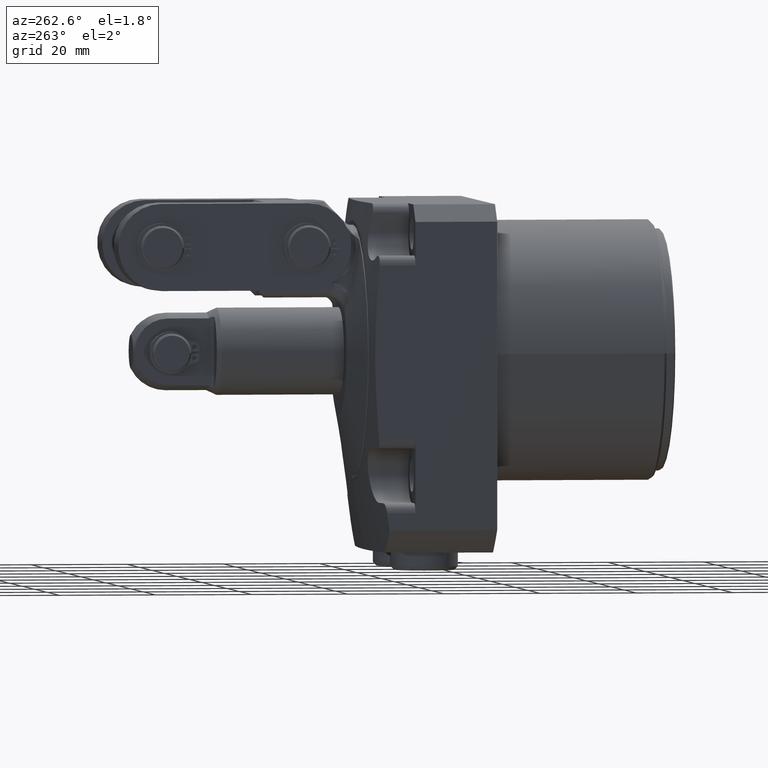
[diagram: clean part render]
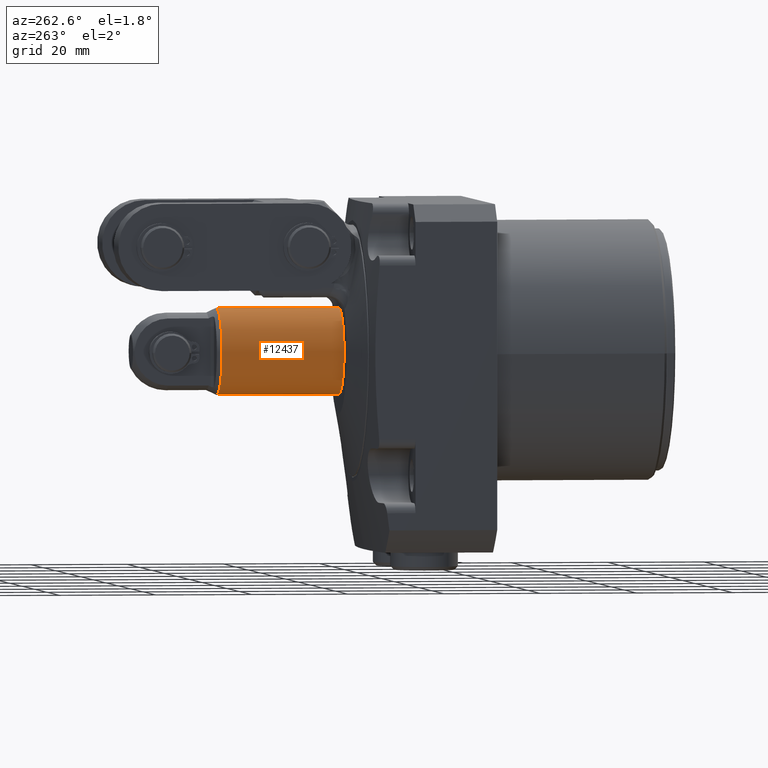
[diagram: same view with one face highlighted and labeled with its STEP entity id]
A machine part, auxiliary view. The second image highlights one B-rep face of the part: STEP entity #12437.
In plain terms, the highlighted cylindrical surface (partial cylindrical patch) has radius 9 mm, axis along (0, -1, 0).
Its self-contained STEP definition (entity closure, byte-faithful):
#7223=CARTESIAN_POINT('',(0.E0,1.25E1,0.E0));
#7224=DIRECTION('',(0.E0,-1.E0,0.E0));
#7225=DIRECTION('',(0.E0,0.E0,1.E0));
#7226=AXIS2_PLACEMENT_3D('',#7223,#7224,#7225);
#7253=DIRECTION('',(0.E0,1.E0,0.E0));
#7254=VECTOR('',#7253,2.54E1);
#7255=CARTESIAN_POINT('',(0.E0,1.25E1,-9.E0));
#7256=LINE('',#7255,#7254);
#7260=DIRECTION('',(0.E0,1.E0,0.E0));
#7261=VECTOR('',#7260,2.54E1);
#7262=CARTESIAN_POINT('',(0.E0,1.25E1,9.E0));
#7263=LINE('',#7262,#7261);
#7326=CARTESIAN_POINT('',(0.E0,3.79E1,0.E0));
#7327=DIRECTION('',(0.E0,1.E0,0.E0));
#7328=DIRECTION('',(0.E0,0.E0,-1.E0));
#7329=AXIS2_PLACEMENT_3D('',#7326,#7327,#7328);
#10868=CARTESIAN_POINT('',(0.E0,3.79E1,-9.E0));
#10870=VERTEX_POINT('',#10868);
#10876=CARTESIAN_POINT('',(0.E0,3.79E1,9.E0));
#10878=VERTEX_POINT('',#10876);
#10884=CARTESIAN_POINT('',(0.E0,1.25E1,-9.E0));
#10885=CARTESIAN_POINT('',(0.E0,1.25E1,9.E0));
#10886=VERTEX_POINT('',#10884);
#10887=VERTEX_POINT('',#10885);
#12425=CARTESIAN_POINT('',(0.E0,5.786E1,0.E0));
#12426=DIRECTION('',(0.E0,-1.E0,0.E0));
#12427=DIRECTION('',(0.E0,0.E0,1.E0));
#12428=AXIS2_PLACEMENT_3D('',#12425,#12426,#12427);
#12429=CYLINDRICAL_SURFACE('',#12428,9.E0);
#12430=ORIENTED_EDGE('',*,*,#12347,.T.);
#12431=ORIENTED_EDGE('',*,*,#12420,.T.);
#12433=ORIENTED_EDGE('',*,*,#12432,.T.);
#12434=ORIENTED_EDGE('',*,*,#12416,.F.);
#12435=EDGE_LOOP('',(#12430,#12431,#12433,#12434));
#12436=FACE_OUTER_BOUND('',#12435,.F.);
#12437=ADVANCED_FACE('',(#12436),#12429,.T.);
#7227=CIRCLE('',#7226,9.E0);
#7330=CIRCLE('',#7329,9.E0);
#12347=EDGE_CURVE('',#10887,#10886,#7227,.T.);
#12416=EDGE_CURVE('',#10887,#10878,#7263,.T.);
#12420=EDGE_CURVE('',#10886,#10870,#7256,.T.);
#12432=EDGE_CURVE('',#10870,#10878,#7330,.T.);